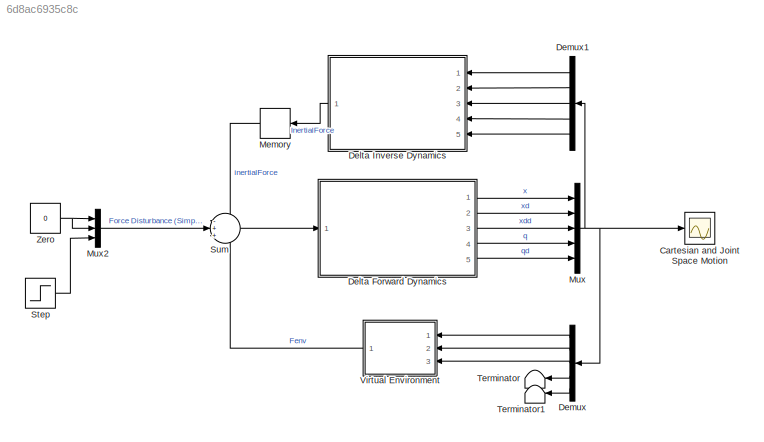
MODEL slx_6d8ac6935c8c
KIND model
CONFIG AbsTol = auto
CONFIG EnableMultiTasking = off
CONFIG FixedStep = 0.001
CONFIG MaxStep = 0.001
CONFIG MinStep = auto
CONFIG RelTol = 1e-5
CONFIG SampleTimeConstraint = Unconstrained
CONFIG Solver = VariableStepAuto
CONFIG SolverName = VariableStepAuto
CONFIG StartTime = 0.0
CONFIG StopTime = 6
BLOCK [Scope] Cartesian and Joint Space Motion
  Floating = off
  NumInputPorts = 1
  Ports = [1]
  ScopeSpecificationString = Simulink.scopes.TimeScopeBlockCfg('CurrentConfiguration', extmgr.ConfigurationSet(extmgr.Configuration('Core','General UI',true),extmgr.Configuration('Core','Source UI',true),extmgr.Configuration('Sources','WiredSimulink',true,'DataLoggingVariableName','x','DataLogging',true,'DataLoggingSaveFormat','StructureWithTime'),extmgr.Configuration('Visuals','Time Domain',true,'SerializedDisplays',{struct(...<+2294ch>
BLOCK [ModelReference] Delta Forward Dynamics
  ModelNameDialog = opSpace_delta
  ModelReferenceVersion = 1.30
  Ports = [1, 5]
BLOCK [ModelReference] Delta Inverse Dynamics
  ModelNameDialog = opFeedback_delta
  ModelReferenceVersion = 1.22
  Ports = [5, 1]
BLOCK [Demux] Demux
  DisplayOption = bar
  Outputs = 5
  Ports = [1, 5]
BLOCK [Demux] Demux1
  DisplayOption = bar
  Outputs = [3 3 3 3 3]
  Ports = [1, 5]
BLOCK [Memory] Memory
BLOCK [Mux] Mux
  DisplayOption = bar
  Inputs = 5
  Ports = [5, 1]
BLOCK [Mux] Mux2
  DisplayOption = bar
  Inputs = 3
  Ports = [3, 1]
BLOCK [Step] Step
  After = -50
  SampleTime = 0
  Time = 2
BLOCK [Sum] Sum
  IconShape = round
  InputSameDT = off
  Inputs = -++
  OutDataTypeStr = Inherit: Inherit via internal rule
  Ports = [3, 1]
  SaturateOnIntegerOverflow = off
BLOCK [Terminator] Terminator
BLOCK [Terminator] Terminator1
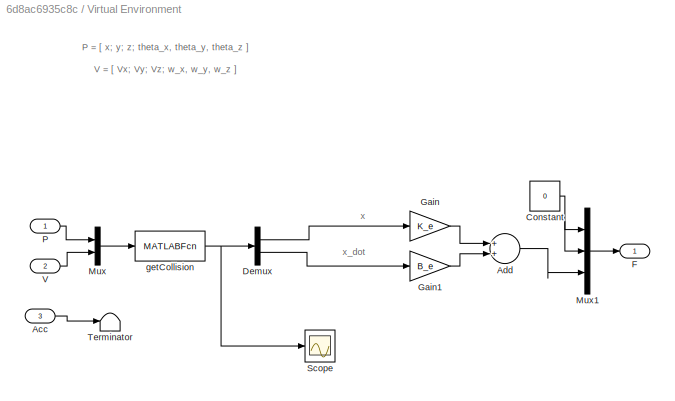
BLOCK [SubSystem] Virtual Environment
  Ports = [3, 1]
  RequestExecContextInheritance = off
BLOCK [Inport] Virtual Environment/Acc 
  IconDisplay = Port number
  Port = 3
BLOCK [Sum] Virtual Environment/Add
  InputSameDT = off
  OutDataTypeStr = Inherit: Inherit via internal rule
  Ports = [2, 1]
  SaturateOnIntegerOverflow = off
BLOCK [Constant] Virtual Environment/Constant
  Value = 0
BLOCK [Demux] Virtual Environment/Demux
  DisplayOption = bar
  Outputs = 2
  Ports = [1, 2]
BLOCK [Outport] Virtual Environment/F
  IconDisplay = Port number
BLOCK [Gain] Virtual Environment/Gain
  Gain = K_e
  OutDataTypeStr = Inherit: Inherit via internal rule
  ParamDataTypeStr = Inherit: Inherit via internal rule
  SaturateOnIntegerOverflow = off
BLOCK [Gain] Virtual Environment/Gain1
  Gain = B_e
  OutDataTypeStr = Inherit: Inherit via internal rule
  ParamDataTypeStr = Inherit: Inherit via internal rule
  SaturateOnIntegerOverflow = off
BLOCK [Mux] Virtual Environment/Mux
  DisplayOption = bar
  Inputs = 2
  Ports = [2, 1]
BLOCK [Mux] Virtual Environment/Mux1
  DisplayOption = bar
  Inputs = 3
  Ports = [3, 1]
BLOCK [Inport] Virtual Environment/P
  IconDisplay = Port number
BLOCK [Scope] Virtual Environment/Scope
  Floating = off
  NumInputPorts = 1
  Ports = [1]
  ScopeSpecificationString = Simulink.scopes.TimeScopeBlockCfg('CurrentConfiguration', extmgr.ConfigurationSet(extmgr.Configuration('Core','General UI',true),extmgr.Configuration('Core','Source UI',true),extmgr.Configuration('Sources','WiredSimulink',true,'DataLoggingVariableName','ScopeData1'),extmgr.Configuration('Visuals','Time Domain',true,'SerializedDisplays',{struct('MinYLimReal','-0.5625','MaxYLimReal','0.0625','YLabel...<+1385ch>
BLOCK [Terminator] Virtual Environment/Terminator
BLOCK [Inport] Virtual Environment/V
  IconDisplay = Port number
  Port = 2
BLOCK [MATLABFcn] Virtual Environment/getCollision
  MATLABFcn = getCollision(u)
  OutputDimensions = 2
  Ports = [1, 1]
BLOCK [Constant] Zero
  Value = 0
ANNOTATION Virtual Environment: P = [ x; y; z; theta_x, theta_y, theta_z ]
ANNOTATION Virtual Environment: V = [ Vx; Vy; Vz; w_x, w_y, w_z ]
ANNOTATION Virtual Environment: x
ANNOTATION Virtual Environment: x_dot
LINE Delta Forward Dynamics:1 -> Mux:1
LINE Delta Forward Dynamics:2 -> Mux:2
LINE Delta Forward Dynamics:3 -> Mux:3
LINE Delta Forward Dynamics:4 -> Mux:4
LINE Delta Forward Dynamics:5 -> Mux:5
LINE Delta Inverse Dynamics:1 -> Memory:1
LINE Demux1:1 -> Delta Inverse Dynamics:1
LINE Demux1:2 -> Delta Inverse Dynamics:2
LINE Demux1:3 -> Delta Inverse Dynamics:3
LINE Demux1:4 -> Delta Inverse Dynamics:4
LINE Demux1:5 -> Delta Inverse Dynamics:5
LINE Demux:1 -> Virtual Environment:1
LINE Demux:2 -> Virtual Environment:2
LINE Demux:3 -> Virtual Environment:3
LINE Demux:4 -> Terminator:1
LINE Demux:5 -> Terminator1:1
LINE Memory:1 -> Sum:1
LINE Mux2:1 -> Sum:2
NET Mux:1 -> Cartesian and Joint Space Motion:1, Demux1:1, Demux:1
LINE Step:1 -> Mux2:3
LINE Sum:1 -> Delta Forward Dynamics:1
LINE Virtual Environment/Acc :1 -> Virtual Environment/Terminator:1
LINE Virtual Environment/Add:1 -> Virtual Environment/Mux1:3
NET Virtual Environment/Constant:1 -> Virtual Environment/Mux1:1, Virtual Environment/Mux1:2
LINE Virtual Environment/Demux:1 -> Virtual Environment/Gain:1
LINE Virtual Environment/Demux:2 -> Virtual Environment/Gain1:1
LINE Virtual Environment/Gain1:1 -> Virtual Environment/Add:2
LINE Virtual Environment/Gain:1 -> Virtual Environment/Add:1
LINE Virtual Environment/Mux1:1 -> Virtual Environment/F:1
LINE Virtual Environment/Mux:1 -> Virtual Environment/getCollision:1
LINE Virtual Environment/P:1 -> Virtual Environment/Mux:1
LINE Virtual Environment/V:1 -> Virtual Environment/Mux:2
NET Virtual Environment/getCollision:1 -> Virtual Environment/Demux:1, Virtual Environment/Scope:1
LINE Virtual Environment:1 -> Sum:3
NET Zero:1 -> Mux2:1, Mux2:2
note: NET lines group one-source signal fan-out (src -> all destinations, sorted); 1:1 wires keep LINE
